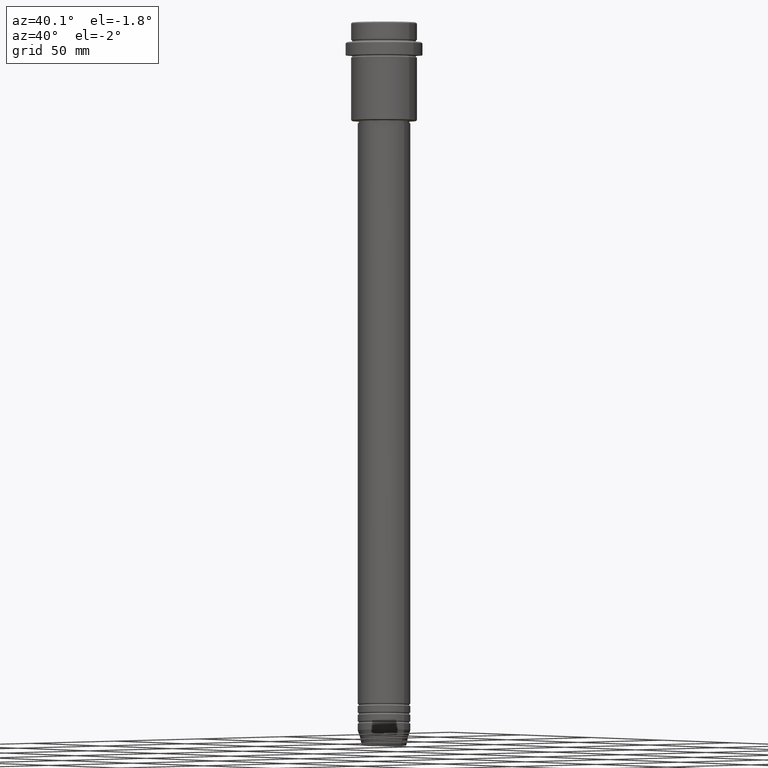
[diagram: clean part render]
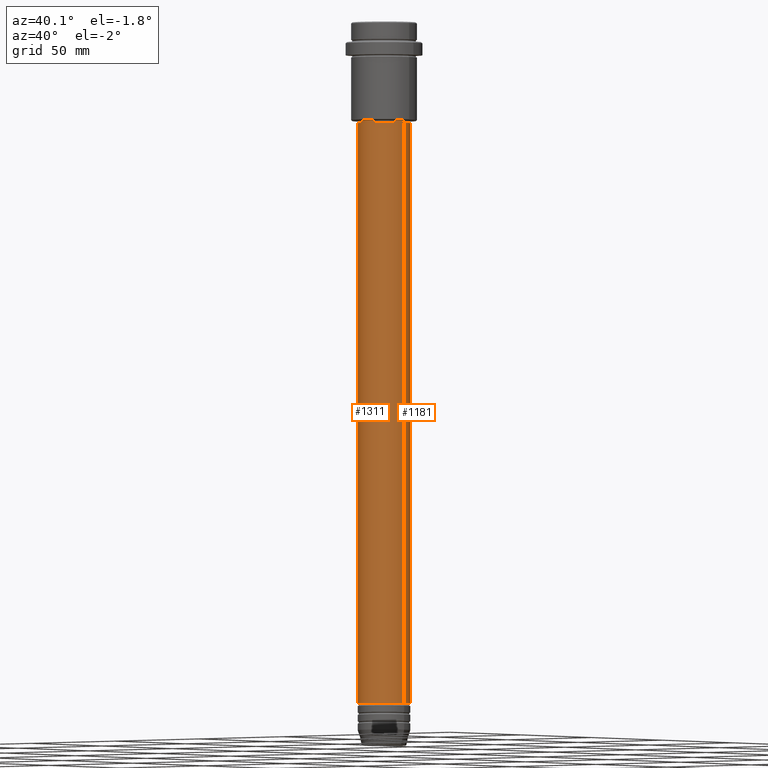
[diagram: same view with one multi-face feature highlighted, each face labeled with its STEP entity id]
A machine part, auxiliary view. The highlighted faces form ONE feature: a constant-radius fillet chain: 2 tangent blend faces with common blend radius 12 mm. The faces share edges in the B-rep.
Their STEP definitions:
[1] entity #1311 (Cylinder):
#45 = DIRECTION ( 'NONE',  ( 1.000000000000000000, 0.000000000000000000, 0.000000000000000000 ) ) ;
#47 = EDGE_CURVE ( 'NONE', #163, #1070, #834, .T. ) ;
#69 = CARTESIAN_POINT ( 'NONE',  ( 0.000000000000000000, 0.000000000000000000, -310.9999999999998863 ) ) ;
#122 = VECTOR ( 'NONE', #417, 1000.000000000000000 ) ;
#163 = VERTEX_POINT ( 'NONE', #594 ) ;
#279 = FACE_OUTER_BOUND ( 'NONE', #1326, .T. ) ;
#289 = DIRECTION ( 'NONE',  ( 1.000000000000000000, 0.000000000000000000, 0.000000000000000000 ) ) ;
#327 = VECTOR ( 'NONE', #596, 1000.000000000000000 ) ;
#359 = CARTESIAN_POINT ( 'NONE',  ( 0.000000000000000000, 0.000000000000000000, 0.000000000000000000 ) ) ;
#417 = DIRECTION ( 'NONE',  ( -0.000000000000000000, -0.000000000000000000, 1.000000000000000000 ) ) ;
#542 = DIRECTION ( 'NONE',  ( 1.000000000000000000, 0.000000000000000000, 0.000000000000000000 ) ) ;
#562 = ORIENTED_EDGE ( 'NONE', *, *, #983, .T. ) ;
#594 = CARTESIAN_POINT ( 'NONE',  ( -11.99999999999999822, 1.469576158976823750E-15, -46.00000000000001421 ) ) ;
#596 = DIRECTION ( 'NONE',  ( -0.000000000000000000, -0.000000000000000000, 1.000000000000000000 ) ) ;
#617 = DIRECTION ( 'NONE',  ( -0.000000000000000000, -0.000000000000000000, 1.000000000000000000 ) ) ;
#660 = ORIENTED_EDGE ( 'NONE', *, *, #1370, .T. ) ;
#679 = DIRECTION ( 'NONE',  ( -0.000000000000000000, -0.000000000000000000, 1.000000000000000000 ) ) ;
#720 = AXIS2_PLACEMENT_3D ( 'NONE', #359, #764, #542 ) ;
#764 = DIRECTION ( 'NONE',  ( -0.000000000000000000, -0.000000000000000000, 1.000000000000000000 ) ) ;
#834 = CIRCLE ( 'NONE', #894, 11.99999999999999822 ) ;
#846 = CIRCLE ( 'NONE', #1218, 12.00000000000000000 ) ;
#892 = CARTESIAN_POINT ( 'NONE',  ( 12.00000000000000000, 0.000000000000000000, -310.9999999999998863 ) ) ;
#894 = AXIS2_PLACEMENT_3D ( 'NONE', #1168, #617, #289 ) ;
#922 = LINE ( 'NONE', #1155, #327 ) ;
#947 = VERTEX_POINT ( 'NONE', #1140 ) ;
#971 = CARTESIAN_POINT ( 'NONE',  ( -12.00000000000000000, 1.469576158976823947E-15, 0.000000000000000000 ) ) ;
#983 = EDGE_CURVE ( 'NONE', #1249, #1070, #922, .T. ) ;
#1068 = ORIENTED_EDGE ( 'NONE', *, *, #1156, .F. ) ;
#1070 = VERTEX_POINT ( 'NONE', #1393 ) ;
#1140 = CARTESIAN_POINT ( 'NONE',  ( -12.00000000000000000, 1.469576158976823947E-15, -310.9999999999998863 ) ) ;
#1155 = CARTESIAN_POINT ( 'NONE',  ( 12.00000000000000000, 0.000000000000000000, 0.000000000000000000 ) ) ;
#1156 = EDGE_CURVE ( 'NONE', #947, #163, #1413, .T. ) ;
#1168 = CARTESIAN_POINT ( 'NONE',  ( 0.000000000000000000, 0.000000000000000000, -46.00000000000001421 ) ) ;
#1218 = AXIS2_PLACEMENT_3D ( 'NONE', #69, #679, #45 ) ;
#1249 = VERTEX_POINT ( 'NONE', #892 ) ;
#1264 = CYLINDRICAL_SURFACE ( 'NONE', #720, 12.00000000000000000 ) ;
#1311 = ADVANCED_FACE ( 'NONE', ( #279 ), #1264, .T. ) ;
#1326 = EDGE_LOOP ( 'NONE', ( #1068, #660, #562, #1352 ) ) ;
#1352 = ORIENTED_EDGE ( 'NONE', *, *, #47, .F. ) ;
#1370 = EDGE_CURVE ( 'NONE', #947, #1249, #846, .T. ) ;
#1393 = CARTESIAN_POINT ( 'NONE',  ( 11.99999999999999822, 0.000000000000000000, -46.00000000000001421 ) ) ;
#1413 = LINE ( 'NONE', #971, #122 ) ;
[2] entity #1181 (Cylinder):
#93 = EDGE_CURVE ( 'NONE', #1249, #947, #575, .T. ) ;
#122 = VECTOR ( 'NONE', #417, 1000.000000000000000 ) ;
#163 = VERTEX_POINT ( 'NONE', #594 ) ;
#165 = ORIENTED_EDGE ( 'NONE', *, *, #983, .F. ) ;
#175 = ORIENTED_EDGE ( 'NONE', *, *, #468, .F. ) ;
#262 = DIRECTION ( 'NONE',  ( -0.000000000000000000, -0.000000000000000000, 1.000000000000000000 ) ) ;
#297 = AXIS2_PLACEMENT_3D ( 'NONE', #799, #262, #923 ) ;
#309 = ORIENTED_EDGE ( 'NONE', *, *, #1156, .T. ) ;
#319 = FACE_OUTER_BOUND ( 'NONE', #631, .T. ) ;
#327 = VECTOR ( 'NONE', #596, 1000.000000000000000 ) ;
#376 = CARTESIAN_POINT ( 'NONE',  ( 0.000000000000000000, 0.000000000000000000, -46.00000000000001421 ) ) ;
#417 = DIRECTION ( 'NONE',  ( -0.000000000000000000, -0.000000000000000000, 1.000000000000000000 ) ) ;
#468 = EDGE_CURVE ( 'NONE', #1070, #163, #1079, .T. ) ;
#473 = DIRECTION ( 'NONE',  ( -0.000000000000000000, -0.000000000000000000, 1.000000000000000000 ) ) ;
#575 = CIRCLE ( 'NONE', #1240, 12.00000000000000000 ) ;
#594 = CARTESIAN_POINT ( 'NONE',  ( -11.99999999999999822, 1.469576158976823750E-15, -46.00000000000001421 ) ) ;
#596 = DIRECTION ( 'NONE',  ( -0.000000000000000000, -0.000000000000000000, 1.000000000000000000 ) ) ;
#631 = EDGE_LOOP ( 'NONE', ( #1297, #309, #175, #165 ) ) ;
#638 = AXIS2_PLACEMENT_3D ( 'NONE', #376, #473, #914 ) ;
#719 = CYLINDRICAL_SURFACE ( 'NONE', #297, 12.00000000000000000 ) ;
#799 = CARTESIAN_POINT ( 'NONE',  ( 0.000000000000000000, 0.000000000000000000, 0.000000000000000000 ) ) ;
#822 = DIRECTION ( 'NONE',  ( 1.000000000000000000, 0.000000000000000000, 0.000000000000000000 ) ) ;
#828 = CARTESIAN_POINT ( 'NONE',  ( 0.000000000000000000, 0.000000000000000000, -310.9999999999998863 ) ) ;
#892 = CARTESIAN_POINT ( 'NONE',  ( 12.00000000000000000, 0.000000000000000000, -310.9999999999998863 ) ) ;
#914 = DIRECTION ( 'NONE',  ( 1.000000000000000000, 0.000000000000000000, 0.000000000000000000 ) ) ;
#922 = LINE ( 'NONE', #1155, #327 ) ;
#923 = DIRECTION ( 'NONE',  ( 1.000000000000000000, 0.000000000000000000, 0.000000000000000000 ) ) ;
#947 = VERTEX_POINT ( 'NONE', #1140 ) ;
#971 = CARTESIAN_POINT ( 'NONE',  ( -12.00000000000000000, 1.469576158976823947E-15, 0.000000000000000000 ) ) ;
#983 = EDGE_CURVE ( 'NONE', #1249, #1070, #922, .T. ) ;
#1070 = VERTEX_POINT ( 'NONE', #1393 ) ;
#1079 = CIRCLE ( 'NONE', #638, 11.99999999999999822 ) ;
#1140 = CARTESIAN_POINT ( 'NONE',  ( -12.00000000000000000, 1.469576158976823947E-15, -310.9999999999998863 ) ) ;
#1155 = CARTESIAN_POINT ( 'NONE',  ( 12.00000000000000000, 0.000000000000000000, 0.000000000000000000 ) ) ;
#1156 = EDGE_CURVE ( 'NONE', #947, #163, #1413, .T. ) ;
#1181 = ADVANCED_FACE ( 'NONE', ( #319 ), #719, .T. ) ;
#1240 = AXIS2_PLACEMENT_3D ( 'NONE', #828, #1340, #822 ) ;
#1249 = VERTEX_POINT ( 'NONE', #892 ) ;
#1297 = ORIENTED_EDGE ( 'NONE', *, *, #93, .T. ) ;
#1340 = DIRECTION ( 'NONE',  ( -0.000000000000000000, -0.000000000000000000, 1.000000000000000000 ) ) ;
#1393 = CARTESIAN_POINT ( 'NONE',  ( 11.99999999999999822, 0.000000000000000000, -46.00000000000001421 ) ) ;
#1413 = LINE ( 'NONE', #971, #122 ) ;